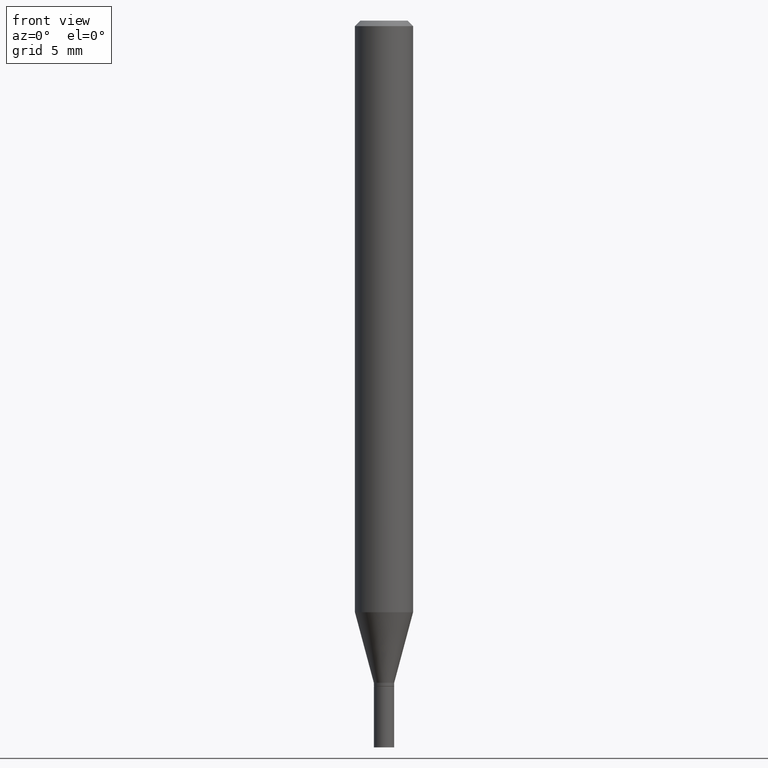
[diagram: clean part render]
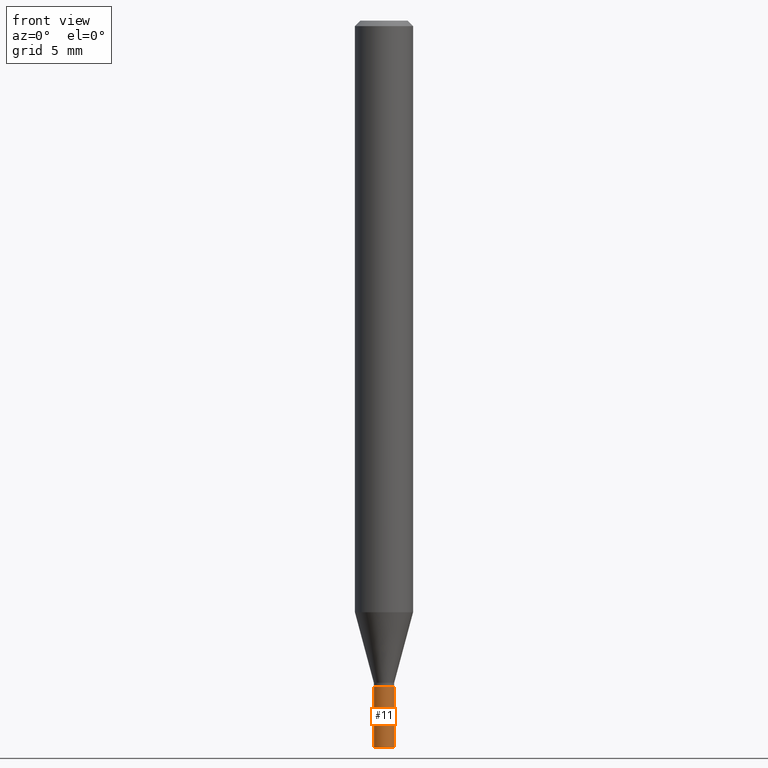
[diagram: same view with one face highlighted and labeled with its STEP entity id]
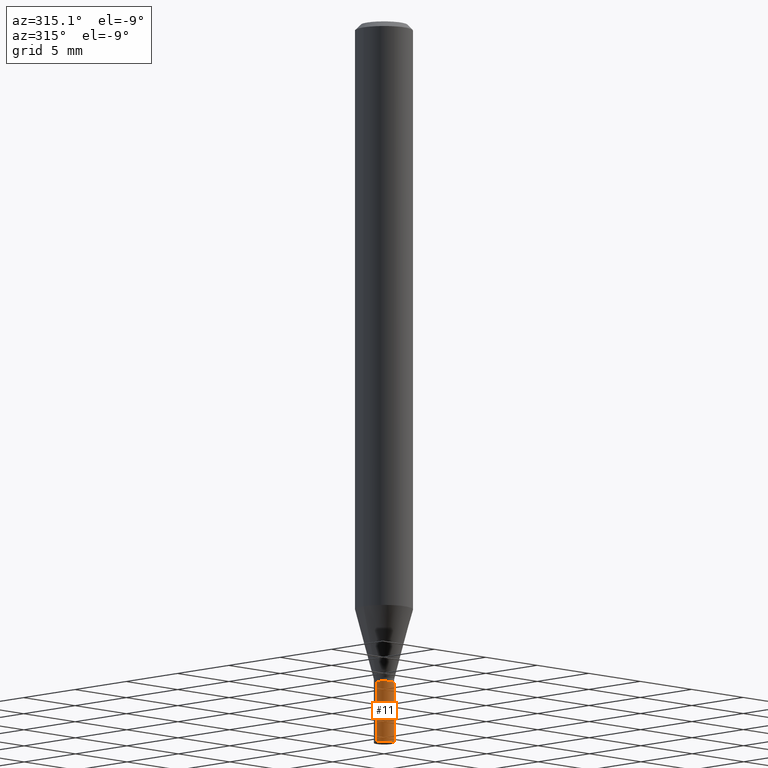
[diagram: same view with one face highlighted and labeled with its STEP entity id]
A machine part, front view. The second image highlights one B-rep face of the part: STEP entity #11.
A second angle (auxiliary view) of the same face is appended — the face is thin or edge-on in the first view.
In plain terms, the highlighted cylindrical surface (edge-blend (fillet) strip) has radius 0.6998 mm, axis along (-0, 0, 1).
Its self-contained STEP definition (entity closure, byte-faithful):
#8 = VERTEX_POINT ( 'NONE', #98 ) ;
#10 = AXIS2_PLACEMENT_3D ( 'NONE', #301, #393, #96 ) ;
#11 = ADVANCED_FACE ( 'NONE', ( #113 ), #426, .T. ) ;
#22 = LINE ( 'NONE', #463, #117 ) ;
#29 = DIRECTION ( 'NONE',  ( 1.000000000000000000, -6.982962677686256455E-15, 0.000000000000000000 ) ) ;
#32 = DIRECTION ( 'NONE',  ( -2.445468806185136877E-29, 3.491481338843145188E-15, 1.000000000000000000 ) ) ;
#35 = CIRCLE ( 'NONE', #140, 0.02755000000000000157 ) ;
#37 = CARTESIAN_POINT ( 'NONE',  ( 0.02755000000000000157, -6.487870623838331454E-15, -1.803099999999999925 ) ) ;
#47 = ORIENTED_EDGE ( 'NONE', *, *, #234, .T. ) ;
#72 = DIRECTION ( 'NONE',  ( 1.000000000000000000, -6.982962677686256455E-15, 0.000000000000000000 ) ) ;
#96 = DIRECTION ( 'NONE',  ( 1.000000000000000000, -6.982962677686265922E-15, 4.876176775795936353E-29 ) ) ;
#98 = CARTESIAN_POINT ( 'NONE',  ( 0.02755000000000000157, -7.065361637282988500E-15, -1.968500000000000139 ) ) ;
#102 = CARTESIAN_POINT ( 'NONE',  ( 0.02755000000000000157, -1.923806217702566451E-16, 1.343386701731780509E-30 ) ) ;
#112 = CARTESIAN_POINT ( 'NONE',  ( 4.813905344975441835E-29, -6.872981015512731707E-15, -1.968500000000000139 ) ) ;
#113 = FACE_OUTER_BOUND ( 'NONE', #333, .T. ) ;
#117 = VECTOR ( 'NONE', #32, 39.37007874015748143 ) ;
#140 = AXIS2_PLACEMENT_3D ( 'NONE', #112, #395, #72 ) ;
#169 = CARTESIAN_POINT ( 'NONE',  ( -0.02755000000000000157, -6.388480985088496632E-15, -1.803099999999999925 ) ) ;
#195 = ORIENTED_EDGE ( 'NONE', *, *, #442, .T. ) ;
#202 = EDGE_CURVE ( 'NONE', #297, #344, #22, .T. ) ;
#213 = CARTESIAN_POINT ( 'NONE',  ( 4.409424804432419562E-29, -6.295490002068075450E-15, -1.803099999999999925 ) ) ;
#234 = EDGE_CURVE ( 'NONE', #8, #406, #419, .T. ) ;
#248 = CARTESIAN_POINT ( 'NONE',  ( -0.02755000000000000157, -6.388480985088496632E-15, -1.968500000000000139 ) ) ;
#256 = AXIS2_PLACEMENT_3D ( 'NONE', #213, #433, #29 ) ;
#271 = VECTOR ( 'NONE', #358, 39.37007874015748143 ) ;
#297 = VERTEX_POINT ( 'NONE', #248 ) ;
#301 = CARTESIAN_POINT ( 'NONE',  ( 0.000000000000000000, 0.000000000000000000, 0.000000000000000000 ) ) ;
#333 = EDGE_LOOP ( 'NONE', ( #441, #195, #47, #391 ) ) ;
#344 = VERTEX_POINT ( 'NONE', #169 ) ;
#358 = DIRECTION ( 'NONE',  ( -2.445468806185136877E-29, 3.491481338843145188E-15, 1.000000000000000000 ) ) ;
#388 = CIRCLE ( 'NONE', #256, 0.02755000000000000157 ) ;
#391 = ORIENTED_EDGE ( 'NONE', *, *, #451, .F. ) ;
#393 = DIRECTION ( 'NONE',  ( -2.445468806185136597E-29, 3.491481338843145583E-15, 1.000000000000000000 ) ) ;
#395 = DIRECTION ( 'NONE',  ( -2.445468806185136597E-29, 3.491481338843145583E-15, 1.000000000000000000 ) ) ;
#406 = VERTEX_POINT ( 'NONE', #37 ) ;
#419 = LINE ( 'NONE', #102, #271 ) ;
#426 = CYLINDRICAL_SURFACE ( 'NONE', #10, 0.02755000000000000157 ) ;
#433 = DIRECTION ( 'NONE',  ( -2.445468806185136597E-29, 3.491481338843145583E-15, 1.000000000000000000 ) ) ;
#441 = ORIENTED_EDGE ( 'NONE', *, *, #202, .F. ) ;
#442 = EDGE_CURVE ( 'NONE', #297, #8, #35, .T. ) ;
#451 = EDGE_CURVE ( 'NONE', #344, #406, #388, .T. ) ;
#463 = CARTESIAN_POINT ( 'NONE',  ( -0.02755000000000000157, 1.957545237019076124E-16, -1.355166617365226565E-30 ) ) ;